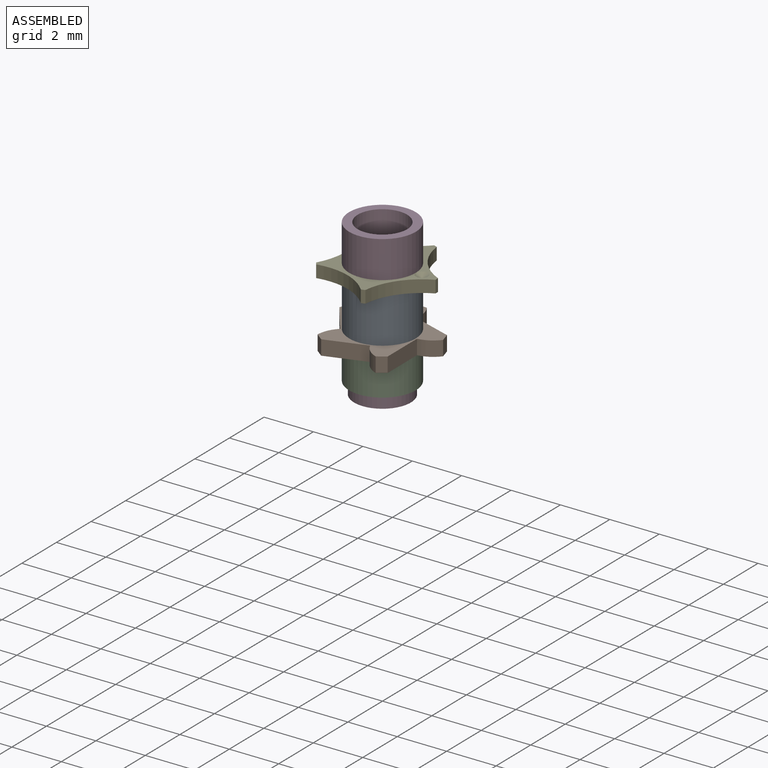
[diagram: assembled view]
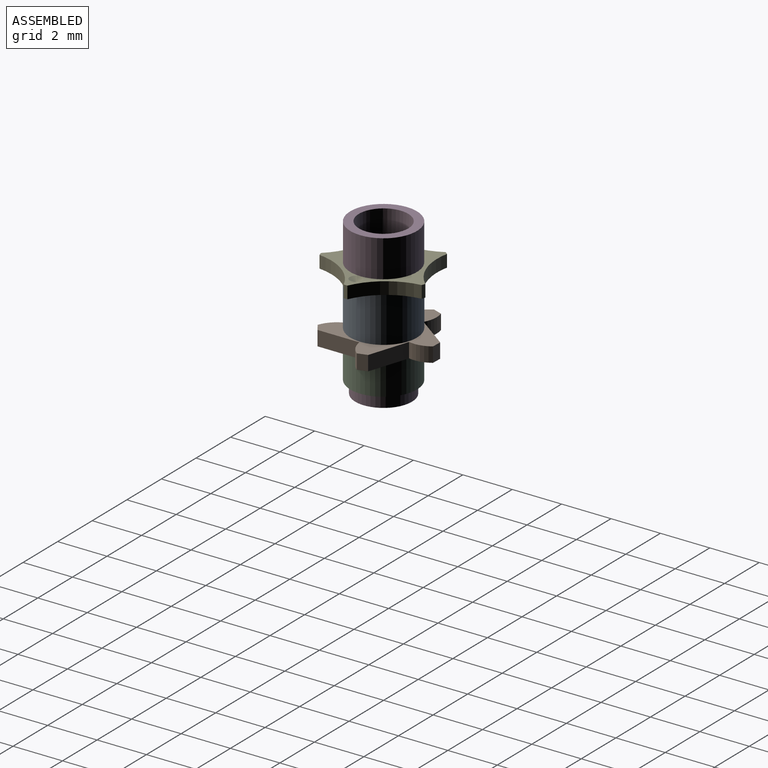
[diagram: assembled view, second angle]
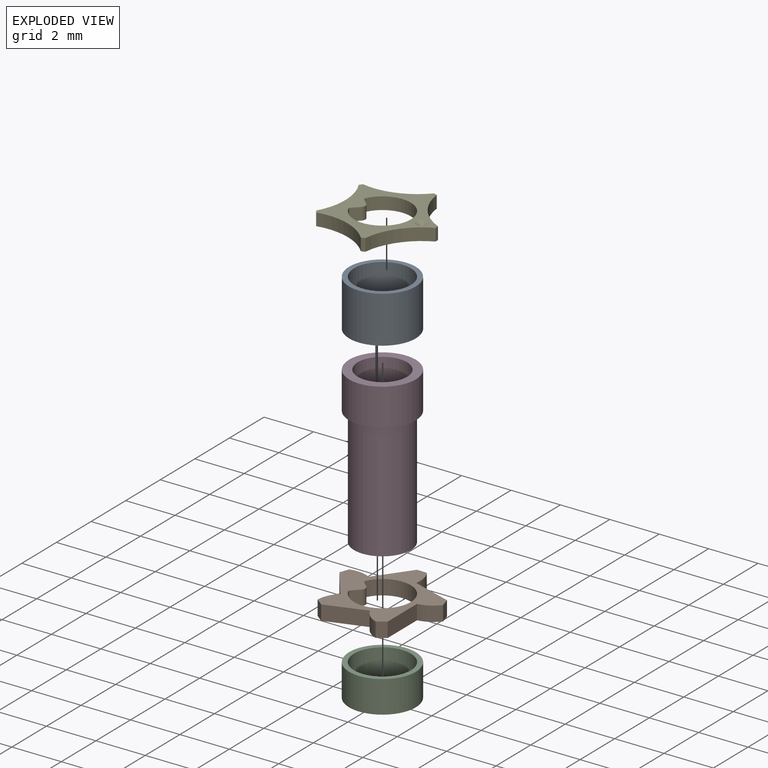
[diagram: exploded view]
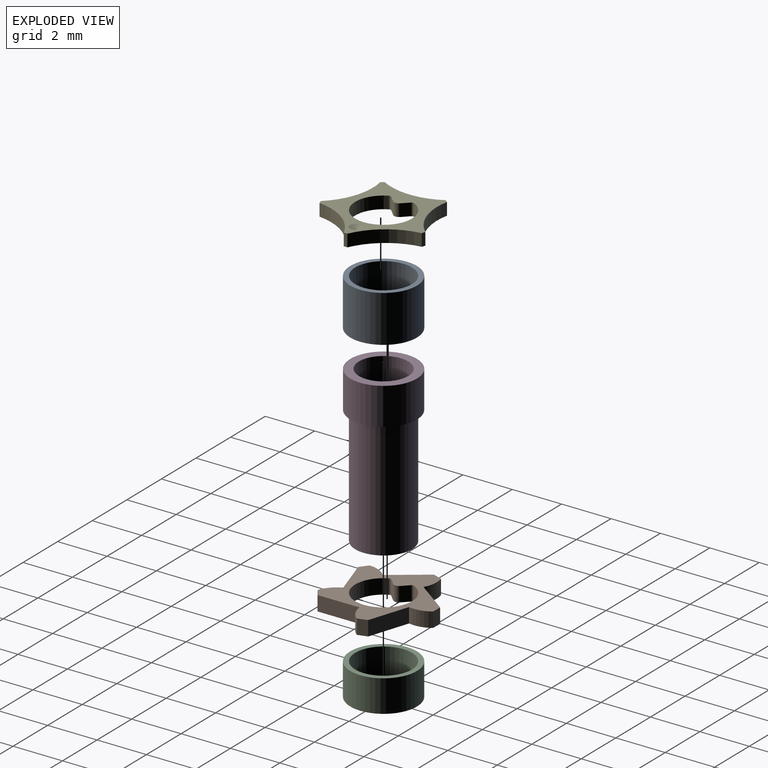
[diagram: exploded view, second angle]
ASSEMBLY  parts=5 mates=4
PART A: 4 faces, bbox 2.7x2.7x1.9 mm
  f0: cylinder r=1.15mm len=2.3mm, axis (0,0,-1), area 13.7mm2, adj f2,f3
  f1: cylinder r=1.35mm len=2.7mm, axis (0,0,-1), area 16.1mm2, adj f2,f3
  f2: plane 2.7x2.7mm, normal (0,0,1), area 1.6mm2, adj f0,f1
  f3: plane 2.7x2.7mm, normal (0,0,-1), area 1.6mm2, adj f0,f1
PART B: 23 faces, bbox 4.3x4.1x0.6 mm
  f0: plane 0.6x0.26mm, normal (0.71,-0.71,0), area 0.2mm2, adj f1,f20,f21,f22
  f1: cylinder r=0.2mm len=0.6mm, axis (0,0,-1), area 0.2mm2, adj f0,f2,f21,f22
  f2: plane 0.6x0.26mm, normal (0.71,0.71,0), area 0.2mm2, adj f1,f3,f21,f22
  f3: cylinder r=0.1mm len=0.6mm, axis (0,0,-1), area 0.1mm2, adj f2,f4,f21,f22
  f4: cylinder r=1.15mm len=2.3mm, axis (0,0,-1), area 3.7mm2, adj f3,f20,f21,f22
  f5: plane 0.6x0.4mm, normal (0.03,1,0), area 0.2mm2, adj f6,f19,f21,f22
  f6: plane 1.37x1mm, normal (-0.81,0.59,0), area 1mm2, adj f5,f7,f21,f22
  f7: cylinder r=1.12mm len=0.86mm, axis (0,0,-1), area 0.5mm2, adj f6,f8,f21,f22
  f8: plane 0.6x0.38mm, normal (-0.94,0.34,0), area 0.2mm2, adj f7,f9,f21,f22
  f9: plane 1.37x1mm, normal (-0.81,-0.59,0), area 1mm2, adj f8,f10,f21,f22
  f10: cylinder r=1.12mm len=0.79mm, axis (0,0,-1), area 0.5mm2, adj f9,f11,f21,f22
  f11: plane 0.6x0.32mm, normal (-0.61,-0.79,0), area 0.2mm2, adj f10,f12,f21,f22
  f12: plane 1.61x0.6mm, normal (0.31,-0.95,0), area 1mm2, adj f11,f13,f21,f22
  f13: cylinder r=1.12mm len=0.64mm, axis (0,0,-1), area 0.5mm2, adj f12,f14,f21,f22
  f14: plane 0.6x0.33mm, normal (0.56,-0.83,0), area 0.2mm2, adj f13,f15,f21,f22
  f15: plane 1.7x0.6mm, normal (1,0,0), area 1mm2, adj f14,f16,f21,f22
  f16: cylinder r=1.12mm len=0.76mm, axis (0,0,-1), area 0.5mm2, adj f15,f17,f21,f22
  f17: plane 0.6x0.38mm, normal (0.96,0.28,0), area 0.2mm2, adj f16,f18,f21,f22
  f18: plane 1.61x0.6mm, normal (0.31,0.95,0), area 1mm2, adj f17,f19,f21,f22
  f19: cylinder r=1.12mm len=0.85mm, axis (0,0,-1), area 0.5mm2, adj f5,f18,f21,f22
  f20: cylinder r=0.1mm len=0.6mm, axis (0,0,-1), area 0.1mm2, adj f0,f4,f21,f22
  f21: plane 4.29x4.12mm, normal (0,0,1), area 6mm2, adj f0,f1,f2,f3,f4,f5,f6,f7
  f22: plane 4.29x4.12mm, normal (0,0,-1), area 6mm2, adj f0,f1,f2,f3,f4,f5,f6,f7
PART C: 4 faces, bbox 2.7x2.7x1.3 mm
  f0: cylinder r=1.15mm len=2.3mm, axis (0,0,-1), area 9.4mm2, adj f2,f3
  f1: cylinder r=1.35mm len=2.7mm, axis (0,0,-1), area 11mm2, adj f2,f3
  f2: plane 2.7x2.7mm, normal (0,0,1), area 1.6mm2, adj f0,f1
  f3: plane 2.7x2.7mm, normal (0,0,-1), area 1.6mm2, adj f0,f1
PART D: 17 faces, bbox 2.7x2.7x6.3 mm
  f0: plane 2.7x2.7mm, normal (0,0,-1), area 1.7mm2, adj f1,f2,f5,f6,f8,f9,f15
  f1: cylinder r=1mm len=6.3mm, axis (0,0,-1), area 34.4mm2, adj f0,f3,f4,f10,f11,f16
  f2: cylinder r=1.35mm len=2.7mm, axis (0,0,-1), area 12.7mm2, adj f0,f3
  f3: plane 2.7x2.7mm, normal (0,0,1), area 2.6mm2, adj f1,f2
  f4: plane 1.03x0.42mm, normal (0,0,1), area 0.2mm2, adj f1,f6,f7,f8,f10,f11,f12,f13
  f5: cylinder r=0.2mm len=4.8mm, axis (0,0,1), area 1.3mm2, adj f0,f6,f15,f16
  f6: plane 4.8x0.24mm, normal (-0.71,0.71,0), area 1.6mm2, adj f0,f4,f5,f7,f16
  f7: cylinder r=0.15mm len=4.8mm, axis (0,0,1), area 1.1mm2, adj f4,f6,f8,f16
  f8: plane 4.8x0.24mm, normal (-0.71,-0.71,0), area 1.6mm2, adj f0,f4,f7,f9,f16
  f9: cylinder r=0.2mm len=4.8mm, axis (0,0,1), area 1.3mm2, adj f0,f8,f15,f16
  f10: cylinder r=0.05mm len=4.8mm, axis (0,0,1), area 0.3mm2, adj f1,f4,f14,f16
  f11: cylinder r=0.05mm len=4.8mm, axis (0,0,1), area 0.3mm2, adj f1,f4,f12,f16
  f12: plane 4.8x0.24mm, normal (0.71,0.71,0), area 1.6mm2, adj f4,f11,f13,f16
  f13: cylinder r=0.3mm len=4.8mm, axis (0,0,1), area 2.3mm2, adj f4,f12,f14,f16
  f14: plane 4.8x0.24mm, normal (0.71,-0.71,0), area 1.6mm2, adj f4,f10,f13,f16
  f15: cylinder r=1.15mm len=4.8mm, axis (0,0,1), area 28.7mm2, adj f0,f5,f9,f16
  f16: plane 2.3x2.17mm, normal (0,0,-1), area 1mm2, adj f1,f5,f6,f7,f8,f9,f10,f11
PART E: 19 faces, bbox 4x4.2x0.5 mm
  f0: plane 0.5x0.26mm, normal (0.71,-0.71,0), area 0.2mm2, adj f1,f15,f16,f17
  f1: cylinder r=0.2mm len=0.5mm, axis (0,0,-1), area 0.2mm2, adj f0,f2,f16,f17
  f2: plane 0.5x0.26mm, normal (0.71,0.71,0), area 0.2mm2, adj f1,f3,f16,f17
  f3: cylinder r=0.1mm len=0.5mm, axis (0,0,-1), area 0.1mm2, adj f2,f4,f16,f17
  f4: cylinder r=1.15mm len=2.3mm, axis (0,0,-1), area 3.1mm2, adj f3,f15,f16,f17
  f5: cylinder r=2.5mm len=1.99mm, axis (0,0,-1), area 1.3mm2, adj f6,f14,f16,f17
  f6: cylinder r=2.2mm len=0.5mm, axis (0,0,-1), area 0.1mm2, adj f5,f7,f16,f17
  f7: cylinder r=2.5mm len=1.99mm, axis (0,0,-1), area 1.3mm2, adj f6,f8,f16,f17
  f8: cylinder r=2.2mm len=0.5mm, axis (0,0,-1), area 0.1mm2, adj f7,f9,f16,f17
  f9: cylinder r=2.5mm len=2.34mm, axis (0,0,-1), area 1.3mm2, adj f8,f10,f16,f17
  f10: cylinder r=2.2mm len=0.5mm, axis (0,0,-1), area 0.1mm2, adj f9,f11,f16,f17
  f11: cylinder r=2.5mm len=2.46mm, axis (0,0,-1), area 1.3mm2, adj f10,f12,f16,f17
  f12: cylinder r=2.2mm len=0.5mm, axis (0,0,-1), area 0.1mm2, adj f11,f13,f16,f17
  f13: cylinder r=2.5mm len=2.34mm, axis (0,0,-1), area 1.3mm2, adj f12,f14,f16,f17
  f14: cylinder r=2.2mm len=0.5mm, axis (0,0,-1), area 0.1mm2, adj f5,f13,f16,f17
  f15: cylinder r=0.1mm len=0.5mm, axis (0,0,-1), area 0.1mm2, adj f0,f4,f16,f17
  f16: plane 4.23x4.02mm, normal (0,0,1), area 5.3mm2, adj f0,f1,f2,f3,f4,f5,f6,f7
  f17: plane 4.23x4.02mm, normal (0,0,-1), area 5.5mm2, adj f0,f1,f2,f3,f4,f5,f6,f7
  f18: cone r=0.25mm half-angle=60deg, axis (0,0,1), area 0.2mm2, adj f16
PLACE A t=(0,0,-2.4)mm
PLACE B t=(0,0,-3)mm
PLACE C t=(0,0,-4.3)mm
PLACE D at identity
PLACE E t=(0,0,-0.5)mm
MATE fastened B.f4 <-> C.f0  axis (0,0,-1) through (0,0,-3)mm
MATE fastened E.f4 <-> D.f1  axis (0,0,-1) through (0,0,0)mm
MATE fastened A.f0 <-> E.f4  axis (0,0,-1) through (0,0,-0.5)mm
MATE fastened A.f0 <-> B.f4  axis (0,0,-1) through (0,0,-2.4)mm
